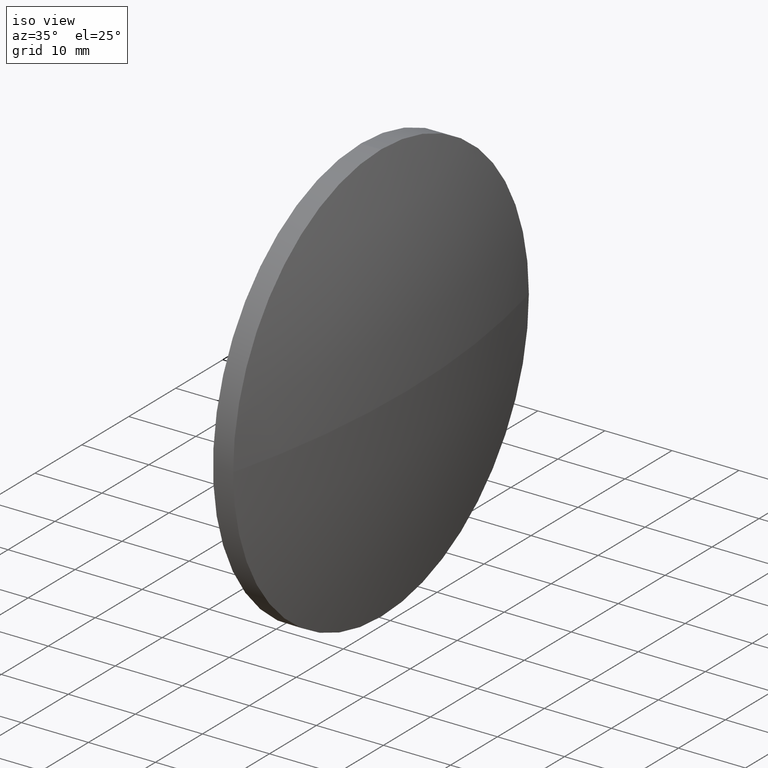
[diagram: clean part render]
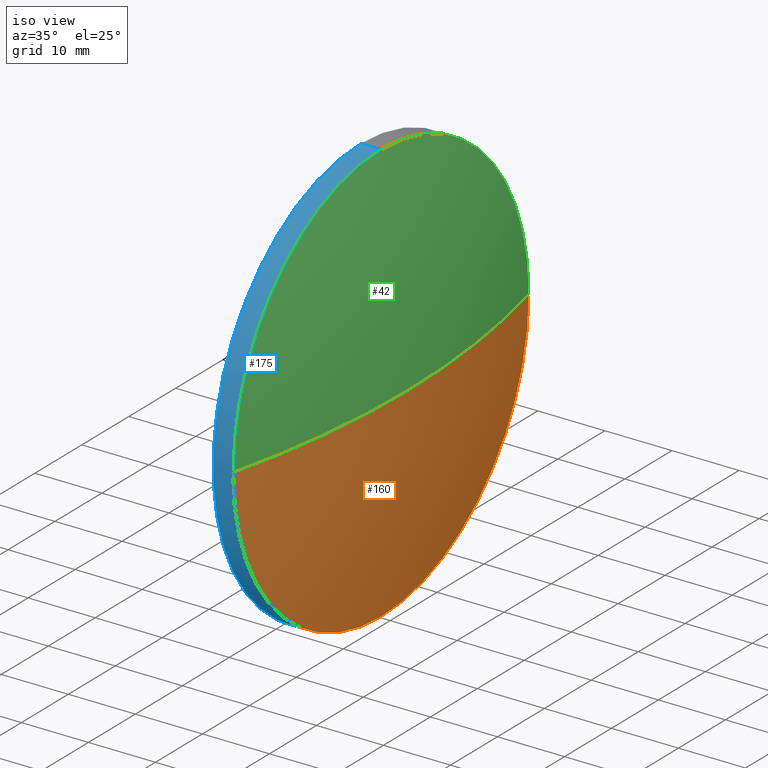
[diagram: same view with three faces highlighted in distinct colors, each labeled with its STEP entity id]
A machine part, iso view with three faces highlighted in distinct colors.
Their STEP definitions:

[orange] entity #160 — the highlighted spherical surface has radius 129.161 mm.
#1 = CIRCLE ( 'NONE', #35, 129.1615384615381600 ) ;
#6 = VERTEX_POINT ( 'NONE', #98 ) ;
#7 = AXIS2_PLACEMENT_3D ( 'NONE', #179, #108, #22 ) ;
#15 = DIRECTION ( 'NONE',  ( 1.000000000000000000, 0.0000000000000000000, 0.0000000000000000000 ) ) ;
#22 = DIRECTION ( 'NONE',  ( 0.0000000000000000000, 1.000000000000000000, 1.224646799147353200E-016 ) ) ;
#31 = CIRCLE ( 'NONE', #53, 31.50000000000000700 ) ;
#32 = AXIS2_PLACEMENT_3D ( 'NONE', #177, #89, #176 ) ;
#35 = AXIS2_PLACEMENT_3D ( 'NONE', #91, #92, #15 ) ;
#36 = CARTESIAN_POINT ( 'NONE',  ( 470.1016550187782700, 57.89546231009239800, 0.0000000000000000000 ) ) ;
#39 = FACE_OUTER_BOUND ( 'NONE', #174, .T. ) ;
#51 = DIRECTION ( 'NONE',  ( -1.000000000000000000, -0.0000000000000000000, -0.0000000000000000000 ) ) ;
#53 = AXIS2_PLACEMENT_3D ( 'NONE', #61, #163, #60 ) ;
#55 = EDGE_CURVE ( 'NONE', #139, #6, #172, .T. ) ;
#60 = DIRECTION ( 'NONE',  ( 0.0000000000000000000, 0.0000000000000000000, 1.000000000000000000 ) ) ;
#61 = CARTESIAN_POINT ( 'NONE',  ( 470.1016550187782700, 57.89546231009239800, 0.0000000000000000000 ) ) ;
#64 = CIRCLE ( 'NONE', #7, 129.1615384615381600 ) ;
#66 = ORIENTED_EDGE ( 'NONE', *, *, #55, .F. ) ;
#71 = CARTESIAN_POINT ( 'NONE',  ( 474.0016550187782500, 57.89546231009235600, 0.0000000000000000000 ) ) ;
#73 = CARTESIAN_POINT ( 'NONE',  ( 470.1016550187782700, 89.39546231009238400, 0.0000000000000000000 ) ) ;
#86 = VERTEX_POINT ( 'NONE', #102 ) ;
#89 = DIRECTION ( 'NONE',  ( -0.0000000000000000000, 0.0000000000000000000, -1.000000000000000000 ) ) ;
#91 = CARTESIAN_POINT ( 'NONE',  ( 344.8401165572400900, 57.89546231009234800, 0.0000000000000000000 ) ) ;
#92 = DIRECTION ( 'NONE',  ( -0.0000000000000000000, 0.0000000000000000000, 1.000000000000000000 ) ) ;
#97 = SPHERICAL_SURFACE ( 'NONE', #32, 129.1615384615381600 ) ;
#98 = CARTESIAN_POINT ( 'NONE',  ( 470.1016550187782700, 57.89546231009240500, -31.50000000000000700 ) ) ;
#102 = CARTESIAN_POINT ( 'NONE',  ( 470.1016550187782700, 26.39546231009237000, -3.857637417314160300E-015 ) ) ;
#106 = VERTEX_POINT ( 'NONE', #71 ) ;
#108 = DIRECTION ( 'NONE',  ( 0.0000000000000000000, 1.224646799147353200E-016, -1.000000000000000000 ) ) ;
#123 = ORIENTED_EDGE ( 'NONE', *, *, #154, .F. ) ;
#135 = EDGE_CURVE ( 'NONE', #6, #86, #31, .T. ) ;
#139 = VERTEX_POINT ( 'NONE', #73 ) ;
#141 = ORIENTED_EDGE ( 'NONE', *, *, #173, .T. ) ;
#143 = ORIENTED_EDGE ( 'NONE', *, *, #135, .F. ) ;
#154 = EDGE_CURVE ( 'NONE', #106, #139, #1, .T. ) ;
#160 = ADVANCED_FACE ( 'NONE', ( #39 ), #97, .T. ) ;
#163 = DIRECTION ( 'NONE',  ( -1.000000000000000000, -0.0000000000000000000, -0.0000000000000000000 ) ) ;
#171 = DIRECTION ( 'NONE',  ( 0.0000000000000000000, 0.0000000000000000000, 1.000000000000000000 ) ) ;
#172 = CIRCLE ( 'NONE', #183, 31.50000000000000700 ) ;
#173 = EDGE_CURVE ( 'NONE', #106, #86, #64, .T. ) ;
#174 = EDGE_LOOP ( 'NONE', ( #123, #141, #143, #66 ) ) ;
#176 = DIRECTION ( 'NONE',  ( 0.0000000000000000000, 1.000000000000000000, 0.0000000000000000000 ) ) ;
#177 = CARTESIAN_POINT ( 'NONE',  ( 344.8401165572400900, 57.89546231009234800, 0.0000000000000000000 ) ) ;
#179 = CARTESIAN_POINT ( 'NONE',  ( 344.8401165572400900, 57.89546231009234800, 0.0000000000000000000 ) ) ;
#183 = AXIS2_PLACEMENT_3D ( 'NONE', #36, #51, #171 ) ;

[blue] entity #175 — the highlighted cylindrical surface (partial cylindrical patch) has radius 31.5 mm, axis along (-1, -0, -0).
#3 = DIRECTION ( 'NONE',  ( -1.000000000000000000, -0.0000000000000000000, -0.0000000000000000000 ) ) ;
#6 = VERTEX_POINT ( 'NONE', #98 ) ;
#13 = FACE_OUTER_BOUND ( 'NONE', #181, .T. ) ;
#16 = CARTESIAN_POINT ( 'NONE',  ( 467.1016550187782700, 57.89546231009239800, 31.50000000000000700 ) ) ;
#20 = VECTOR ( 'NONE', #186, 1000.000000000000000 ) ;
#23 = LINE ( 'NONE', #114, #50 ) ;
#25 = DIRECTION ( 'NONE',  ( -1.000000000000000000, -0.0000000000000000000, -0.0000000000000000000 ) ) ;
#28 = EDGE_CURVE ( 'NONE', #6, #155, #23, .T. ) ;
#30 = AXIS2_PLACEMENT_3D ( 'NONE', #146, #157, #43 ) ;
#31 = CIRCLE ( 'NONE', #53, 31.50000000000000700 ) ;
#33 = CARTESIAN_POINT ( 'NONE',  ( 458.3320207545457400, 57.89546231009239800, 31.50000000000000700 ) ) ;
#40 = AXIS2_PLACEMENT_3D ( 'NONE', #152, #3, #138 ) ;
#43 = DIRECTION ( 'NONE',  ( 0.0000000000000000000, 0.0000000000000000000, 1.000000000000000000 ) ) ;
#50 = VECTOR ( 'NONE', #25, 1000.000000000000000 ) ;
#53 = AXIS2_PLACEMENT_3D ( 'NONE', #61, #163, #60 ) ;
#58 = LINE ( 'NONE', #33, #20 ) ;
#60 = DIRECTION ( 'NONE',  ( 0.0000000000000000000, 0.0000000000000000000, 1.000000000000000000 ) ) ;
#61 = CARTESIAN_POINT ( 'NONE',  ( 470.1016550187782700, 57.89546231009239800, 0.0000000000000000000 ) ) ;
#72 = ORIENTED_EDGE ( 'NONE', *, *, #85, .F. ) ;
#74 = CARTESIAN_POINT ( 'NONE',  ( 470.1016550187782700, 57.89546231009239800, 31.50000000000000700 ) ) ;
#79 = ORIENTED_EDGE ( 'NONE', *, *, #28, .F. ) ;
#81 = CIRCLE ( 'NONE', #30, 31.50000000000000700 ) ;
#85 = EDGE_CURVE ( 'NONE', #155, #162, #81, .T. ) ;
#86 = VERTEX_POINT ( 'NONE', #102 ) ;
#95 = DIRECTION ( 'NONE',  ( -1.000000000000000000, -0.0000000000000000000, -0.0000000000000000000 ) ) ;
#96 = ORIENTED_EDGE ( 'NONE', *, *, #164, .T. ) ;
#98 = CARTESIAN_POINT ( 'NONE',  ( 470.1016550187782700, 57.89546231009240500, -31.50000000000000700 ) ) ;
#102 = CARTESIAN_POINT ( 'NONE',  ( 470.1016550187782700, 26.39546231009237000, -3.857637417314160300E-015 ) ) ;
#103 = CIRCLE ( 'NONE', #127, 31.50000000000000700 ) ;
#110 = VERTEX_POINT ( 'NONE', #74 ) ;
#114 = CARTESIAN_POINT ( 'NONE',  ( 458.3320207545457400, 57.89546231009240500, -31.50000000000000700 ) ) ;
#127 = AXIS2_PLACEMENT_3D ( 'NONE', #159, #95, #166 ) ;
#132 = CARTESIAN_POINT ( 'NONE',  ( 467.1016550187782700, 57.89546231009240500, -31.50000000000000700 ) ) ;
#135 = EDGE_CURVE ( 'NONE', #6, #86, #31, .T. ) ;
#138 = DIRECTION ( 'NONE',  ( 0.0000000000000000000, 0.0000000000000000000, 1.000000000000000000 ) ) ;
#146 = CARTESIAN_POINT ( 'NONE',  ( 467.1016550187782700, 57.89546231009239800, 0.0000000000000000000 ) ) ;
#148 = ORIENTED_EDGE ( 'NONE', *, *, #156, .T. ) ;
#152 = CARTESIAN_POINT ( 'NONE',  ( 458.3320207545457400, 57.89546231009239800, 0.0000000000000000000 ) ) ;
#155 = VERTEX_POINT ( 'NONE', #132 ) ;
#156 = EDGE_CURVE ( 'NONE', #110, #162, #58, .T. ) ;
#157 = DIRECTION ( 'NONE',  ( -1.000000000000000000, -0.0000000000000000000, -0.0000000000000000000 ) ) ;
#158 = ORIENTED_EDGE ( 'NONE', *, *, #135, .T. ) ;
#159 = CARTESIAN_POINT ( 'NONE',  ( 470.1016550187782700, 57.89546231009239800, 0.0000000000000000000 ) ) ;
#162 = VERTEX_POINT ( 'NONE', #16 ) ;
#163 = DIRECTION ( 'NONE',  ( -1.000000000000000000, -0.0000000000000000000, -0.0000000000000000000 ) ) ;
#164 = EDGE_CURVE ( 'NONE', #86, #110, #103, .T. ) ;
#166 = DIRECTION ( 'NONE',  ( 0.0000000000000000000, 0.0000000000000000000, 1.000000000000000000 ) ) ;
#175 = ADVANCED_FACE ( 'NONE', ( #13 ), #182, .T. ) ;
#181 = EDGE_LOOP ( 'NONE', ( #79, #158, #96, #148, #72 ) ) ;
#182 = CYLINDRICAL_SURFACE ( 'NONE', #40, 31.50000000000000700 ) ;
#186 = DIRECTION ( 'NONE',  ( -1.000000000000000000, -0.0000000000000000000, -0.0000000000000000000 ) ) ;

[green] entity #42 — the highlighted spherical surface has radius 129.161 mm.
#1 = CIRCLE ( 'NONE', #35, 129.1615384615381600 ) ;
#7 = AXIS2_PLACEMENT_3D ( 'NONE', #179, #108, #22 ) ;
#15 = DIRECTION ( 'NONE',  ( 1.000000000000000000, 0.0000000000000000000, 0.0000000000000000000 ) ) ;
#18 = CIRCLE ( 'NONE', #140, 31.50000000000000700 ) ;
#22 = DIRECTION ( 'NONE',  ( 0.0000000000000000000, 1.000000000000000000, 1.224646799147353200E-016 ) ) ;
#24 = DIRECTION ( 'NONE',  ( -0.0000000000000000000, 0.0000000000000000000, -1.000000000000000000 ) ) ;
#35 = AXIS2_PLACEMENT_3D ( 'NONE', #91, #92, #15 ) ;
#41 = DIRECTION ( 'NONE',  ( 0.0000000000000000000, 0.0000000000000000000, 1.000000000000000000 ) ) ;
#42 = ADVANCED_FACE ( 'NONE', ( #125 ), #70, .T. ) ;
#57 = DIRECTION ( 'NONE',  ( -1.000000000000000000, -0.0000000000000000000, -0.0000000000000000000 ) ) ;
#64 = CIRCLE ( 'NONE', #7, 129.1615384615381600 ) ;
#65 = EDGE_CURVE ( 'NONE', #110, #139, #18, .T. ) ;
#70 = SPHERICAL_SURFACE ( 'NONE', #75, 129.1615384615381600 ) ;
#71 = CARTESIAN_POINT ( 'NONE',  ( 474.0016550187782500, 57.89546231009235600, 0.0000000000000000000 ) ) ;
#73 = CARTESIAN_POINT ( 'NONE',  ( 470.1016550187782700, 89.39546231009238400, 0.0000000000000000000 ) ) ;
#74 = CARTESIAN_POINT ( 'NONE',  ( 470.1016550187782700, 57.89546231009239800, 31.50000000000000700 ) ) ;
#75 = AXIS2_PLACEMENT_3D ( 'NONE', #129, #24, #130 ) ;
#86 = VERTEX_POINT ( 'NONE', #102 ) ;
#91 = CARTESIAN_POINT ( 'NONE',  ( 344.8401165572400900, 57.89546231009234800, 0.0000000000000000000 ) ) ;
#92 = DIRECTION ( 'NONE',  ( -0.0000000000000000000, 0.0000000000000000000, 1.000000000000000000 ) ) ;
#95 = DIRECTION ( 'NONE',  ( -1.000000000000000000, -0.0000000000000000000, -0.0000000000000000000 ) ) ;
#102 = CARTESIAN_POINT ( 'NONE',  ( 470.1016550187782700, 26.39546231009237000, -3.857637417314160300E-015 ) ) ;
#103 = CIRCLE ( 'NONE', #127, 31.50000000000000700 ) ;
#106 = VERTEX_POINT ( 'NONE', #71 ) ;
#108 = DIRECTION ( 'NONE',  ( 0.0000000000000000000, 1.224646799147353200E-016, -1.000000000000000000 ) ) ;
#110 = VERTEX_POINT ( 'NONE', #74 ) ;
#113 = ORIENTED_EDGE ( 'NONE', *, *, #154, .T. ) ;
#118 = CARTESIAN_POINT ( 'NONE',  ( 470.1016550187782700, 57.89546231009239800, 0.0000000000000000000 ) ) ;
#120 = ORIENTED_EDGE ( 'NONE', *, *, #173, .F. ) ;
#125 = FACE_OUTER_BOUND ( 'NONE', #178, .T. ) ;
#127 = AXIS2_PLACEMENT_3D ( 'NONE', #159, #95, #166 ) ;
#129 = CARTESIAN_POINT ( 'NONE',  ( 344.8401165572400900, 57.89546231009234800, 0.0000000000000000000 ) ) ;
#130 = DIRECTION ( 'NONE',  ( 0.0000000000000000000, 1.000000000000000000, 0.0000000000000000000 ) ) ;
#139 = VERTEX_POINT ( 'NONE', #73 ) ;
#140 = AXIS2_PLACEMENT_3D ( 'NONE', #118, #57, #41 ) ;
#151 = ORIENTED_EDGE ( 'NONE', *, *, #65, .F. ) ;
#154 = EDGE_CURVE ( 'NONE', #106, #139, #1, .T. ) ;
#159 = CARTESIAN_POINT ( 'NONE',  ( 470.1016550187782700, 57.89546231009239800, 0.0000000000000000000 ) ) ;
#164 = EDGE_CURVE ( 'NONE', #86, #110, #103, .T. ) ;
#166 = DIRECTION ( 'NONE',  ( 0.0000000000000000000, 0.0000000000000000000, 1.000000000000000000 ) ) ;
#167 = ORIENTED_EDGE ( 'NONE', *, *, #164, .F. ) ;
#173 = EDGE_CURVE ( 'NONE', #106, #86, #64, .T. ) ;
#178 = EDGE_LOOP ( 'NONE', ( #120, #113, #151, #167 ) ) ;
#179 = CARTESIAN_POINT ( 'NONE',  ( 344.8401165572400900, 57.89546231009234800, 0.0000000000000000000 ) ) ;